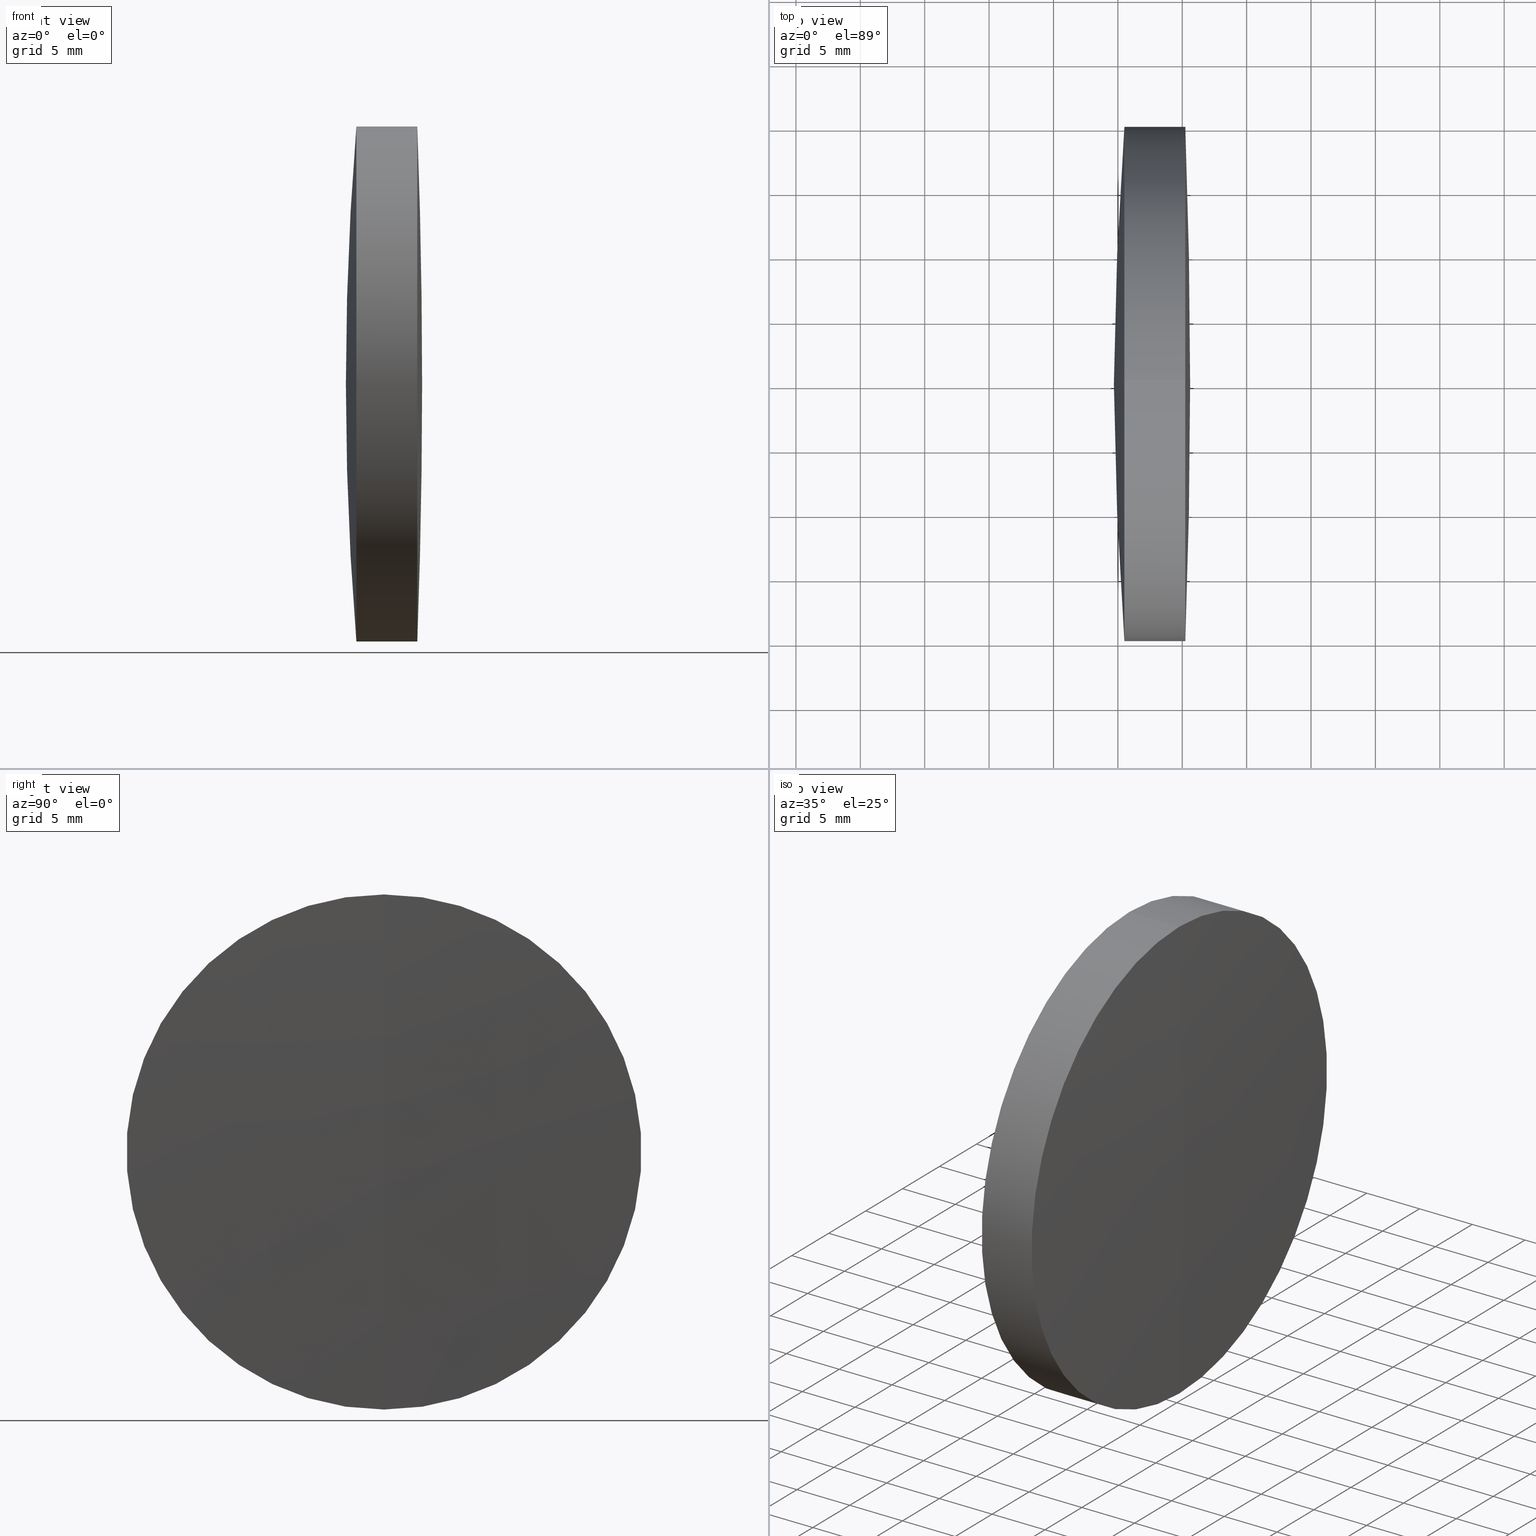
[diagram: canonical four-view strip — front | top / right | iso, engineering-drawing reading convention]
A machine part, canonical four-view strip (front | top / right | iso — engineering-drawing reading convention). The complete STEP part file that produces these views, byte-faithful:
ISO-10303-21;
HEADER;
FILE_DESCRIPTION (( 'STEP AP214' ),
    '1' );
FILE_NAME ('145076.STEP',
    '2019-05-16T01:32:46',
    ( 'user' ),
    ( '΢���й�' ),
    'SwSTEP 2.0',
    'SolidWorks 2016',
    '' );
FILE_SCHEMA (( 'AUTOMOTIVE_DESIGN' ));
ENDSEC;

DATA;
#1 = VERTEX_POINT ( 'NONE', #129 ) ;
#2 = ORIENTED_EDGE ( 'NONE', *, *, #91, .F. ) ;
#3 = AXIS2_PLACEMENT_3D ( 'NONE', #262, #344, #190 ) ;
#4 = SPHERICAL_SURFACE ( 'NONE', #308, 245.6400000000000400 ) ;
#5 = ORIENTED_EDGE ( 'NONE', *, *, #15, .F. ) ;
#6 = CARTESIAN_POINT ( 'NONE',  ( 312.3747908760627800, 0.0000000000000000000, 0.0000000000000000000 ) ) ;
#7 = CARTESIAN_POINT ( 'NONE',  ( 310.5066381123800700, 0.0000000000000000000, 0.0000000000000000000 ) ) ;
#8 = ADVANCED_FACE ( 'NONE', ( #258 ), #327, .F. ) ;
#9 = AXIS2_PLACEMENT_3D ( 'NONE', #166, #187, #220 ) ;
#10 = CARTESIAN_POINT ( 'NONE',  ( 312.3747908760627200, 0.0000000000000000000, 0.0000000000000000000 ) ) ;
#11 = LINE ( 'NONE', #111, #152 ) ;
#12 = ORIENTED_EDGE ( 'NONE', *, *, #107, .F. ) ;
#13 = DIRECTION ( 'NONE',  ( 0.0000000000000000000, 1.000000000000000000, 0.0000000000000000000 ) ) ;
#14 = ORIENTED_EDGE ( 'NONE', *, *, #162, .T. ) ;
#15 = EDGE_CURVE ( 'NONE', #69, #247, #191, .T. ) ;
#16 = CIRCLE ( 'NONE', #233, 535.8160000000000300 ) ;
#17 = AXIS2_PLACEMENT_3D ( 'NONE', #120, #276, #96 ) ;
#18 = COLOUR_RGB ( '',1.000000000000000000, 1.000000000000000000, 1.000000000000000000 ) ;
#19 = CARTESIAN_POINT ( 'NONE',  ( -0.5519199926577972300, 0.0000000000000000000, 0.0000000000000000000 ) ) ;
#20 = CARTESIAN_POINT ( 'NONE',  ( 124.5233095260452400, 0.0000000000000000000, 0.0000000000000000000 ) ) ;
#21 = FILL_AREA_STYLE_COLOUR ( '', #18 ) ;
#22 = DIRECTION ( 'NONE',  ( -1.000000000000000000, -0.0000000000000000000, -0.0000000000000000000 ) ) ;
#23 = AXIS2_PLACEMENT_3D ( 'NONE', #272, #229, #118 ) ;
#24 =( LENGTH_UNIT ( ) NAMED_UNIT ( * ) SI_UNIT ( .MILLI., .METRE. ) );
#25 = DIRECTION ( 'NONE',  ( 0.0000000000000000000, 0.0000000000000000000, 1.000000000000000000 ) ) ;
#26 =( NAMED_UNIT ( * ) SI_UNIT ( $, .STERADIAN. ) SOLID_ANGLE_UNIT ( ) );
#27 = CARTESIAN_POINT ( 'NONE',  ( 313.6110846041469200, 0.0000000000000000000, -1.245160735530812400E-013 ) ) ;
#28 = AXIS2_PLACEMENT_3D ( 'NONE', #314, #22, #217 ) ;
#29 =( NAMED_UNIT ( * ) SI_UNIT ( $, .STERADIAN. ) SOLID_ANGLE_UNIT ( ) );
#30 = EDGE_LOOP ( 'NONE', ( #103, #238, #142, #342 ) ) ;
#31 = APPLICATION_CONTEXT ( 'automotive_design' ) ;
#32 = EDGE_CURVE ( 'NONE', #336, #216, #43, .T. ) ;
#33 = ADVANCED_FACE ( 'NONE', ( #121 ), #252, .T. ) ;
#34 = CARTESIAN_POINT ( 'NONE',  ( 312.3747908760627200, 2.449293598294689900E-015, -19.99999999999986500 ) ) ;
#35 = UNCERTAINTY_MEASURE_WITH_UNIT (LENGTH_MEASURE( 1.000000000000000100E-005 ), #24, 'distance_accuracy_value', 'NONE');
#36 = AXIS2_PLACEMENT_3D ( 'NONE', #7, #174, #323 ) ;
#37 = VERTEX_POINT ( 'NONE', #182 ) ;
#38 = DIRECTION ( 'NONE',  ( -1.000000000000000000, -0.0000000000000000000, -0.0000000000000000000 ) ) ;
#39 = CIRCLE ( 'NONE', #317, 19.99999999999986500 ) ;
#40 = DIRECTION ( 'NONE',  ( 0.0000000000000000000, -1.000000000000000000, 0.0000000000000000000 ) ) ;
#41 = STYLED_ITEM ( 'NONE', ( #198 ), #299 ) ;
#42 = AXIS2_PLACEMENT_3D ( 'NONE', #312, #133, #288 ) ;
#43 = CIRCLE ( 'NONE', #3, 19.99999999999996100 ) ;
#44 = DIRECTION ( 'NONE',  ( -1.000000000000000000, -0.0000000000000000000, -0.0000000000000000000 ) ) ;
#45 = EDGE_CURVE ( 'NONE', #122, #37, #39, .T. ) ;
#46 = SURFACE_STYLE_USAGE ( .BOTH. , #239 ) ;
#47 = EDGE_LOOP ( 'NONE', ( #155, #265, #12 ) ) ;
#48 =( NAMED_UNIT ( * ) SI_UNIT ( $, .STERADIAN. ) SOLID_ANGLE_UNIT ( ) );
#49 = DIRECTION ( 'NONE',  ( -1.000000000000000000, -0.0000000000000000000, -0.0000000000000000000 ) ) ;
#50 = CARTESIAN_POINT ( 'NONE',  ( 310.5066381123800700, 0.0000000000000000000, 0.0000000000000000000 ) ) ;
#51 = CYLINDRICAL_SURFACE ( 'NONE', #23, 19.99999999999986500 ) ;
#52 = FILL_AREA_STYLE_COLOUR ( '', #222 ) ;
#53 = VERTEX_POINT ( 'NONE', #110 ) ;
#54 = AXIS2_PLACEMENT_3D ( 'NONE', #200, #302, #94 ) ;
#55 = ORIENTED_EDGE ( 'NONE', *, *, #32, .F. ) ;
#56 = APPLICATION_PROTOCOL_DEFINITION ( 'draft international standard', 'automotive_design', 1998, #87 ) ;
#57 = ORIENTED_EDGE ( 'NONE', *, *, #141, .F. ) ;
#58 = PRESENTATION_LAYER_ASSIGNMENT (  '', '', ( #41 ) ) ;
#59 = CARTESIAN_POINT ( 'NONE',  ( 315.2376920384078900, 0.0000000000000000000, 19.99999999999996100 ) ) ;
#60 = SPHERICAL_SURFACE ( 'NONE', #131, 162.3920000000000000 ) ;
#61 = ADVANCED_BREP_SHAPE_REPRESENTATION ( '145076', ( #299, #307, #241 ), #256 ) ;
#62 = ADVANCED_FACE ( 'NONE', ( #181 ), #178, .T. ) ;
#63 = AXIS2_PLACEMENT_3D ( 'NONE', #105, #184, #315 ) ;
#64 = ORIENTED_EDGE ( 'NONE', *, *, #32, .T. ) ;
#65 = DIRECTION ( 'NONE',  ( 0.0000000000000000000, -1.224646799147353200E-016, 1.000000000000000000 ) ) ;
#66 = DIRECTION ( 'NONE',  ( 0.0000000000000000000, 0.0000000000000000000, 1.000000000000000000 ) ) ;
#67 = ORIENTED_EDGE ( 'NONE', *, *, #153, .F. ) ;
#68 = EDGE_CURVE ( 'NONE', #146, #226, #309, .T. ) ;
#69 = VERTEX_POINT ( 'NONE', #83 ) ;
#70 = VECTOR ( 'NONE', #38, 1000.000000000000000 ) ;
#71 = EDGE_LOOP ( 'NONE', ( #338, #270, #55 ) ) ;
#72 = ORIENTED_EDGE ( 'NONE', *, *, #180, .F. ) ;
#73 = LINE ( 'NONE', #231, #343 ) ;
#74 = PRESENTATION_STYLE_ASSIGNMENT (( #186 ) ) ;
#75 = AXIS2_PLACEMENT_3D ( 'NONE', #6, #172, #322 ) ;
#76 = CARTESIAN_POINT ( 'NONE',  ( 151.2190846041469300, 0.0000000000000000000, -1.344597157034381000E-013 ) ) ;
#77 = SHAPE_DEFINITION_REPRESENTATION ( #99, #61 ) ;
#78 = ORIENTED_EDGE ( 'NONE', *, *, #113, .F. ) ;
#79 = ORIENTED_EDGE ( 'NONE', *, *, #124, .T. ) ;
#80 = FILL_AREA_STYLE ('',( #311 ) ) ;
#81 = FACE_OUTER_BOUND ( 'NONE', #128, .T. ) ;
#82 = ORIENTED_EDGE ( 'NONE', *, *, #125, .F. ) ;
#83 = CARTESIAN_POINT ( 'NONE',  ( 312.3747908760627800, 2.449293598294676900E-015, -19.99999999999989700 ) ) ;
#84 = MECHANICAL_DESIGN_GEOMETRIC_PRESENTATION_REPRESENTATION (  '', ( #41 ), #104 ) ;
#85 = CARTESIAN_POINT ( 'NONE',  ( 310.5066381123801300, 2.449293598294697000E-015, -20.00000000000005700 ) ) ;
#86 = SPHERICAL_SURFACE ( 'NONE', #244, 162.3920000000000000 ) ;
#87 = APPLICATION_CONTEXT ( 'automotive_design' ) ;
#88 = ORIENTED_EDGE ( 'NONE', *, *, #162, .F. ) ;
#89 = ORIENTED_EDGE ( 'NONE', *, *, #45, .F. ) ;
#90 = PRESENTATION_STYLE_ASSIGNMENT (( #136 ) ) ;
#91 = EDGE_CURVE ( 'NONE', #37, #1, #248, .T. ) ;
#92 = LINE ( 'NONE', #279, #70 ) ;
#93 = CARTESIAN_POINT ( 'NONE',  ( 312.3747908760627800, 0.0000000000000000000, 19.99999999999976200 ) ) ;
#94 = DIRECTION ( 'NONE',  ( 0.0000000000000000000, 0.0000000000000000000, 1.000000000000000000 ) ) ;
#95 = ADVANCED_FACE ( 'NONE', ( #319 ), #227, .T. ) ;
#96 = DIRECTION ( 'NONE',  ( 0.0000000000000000000, 0.0000000000000000000, -1.000000000000000000 ) ) ;
#97 = AXIS2_PLACEMENT_3D ( 'NONE', #148, #301, #274 ) ;
#98 = CARTESIAN_POINT ( 'NONE',  ( 151.2190846041469300, 0.0000000000000000000, -1.344597157034381000E-013 ) ) ;
#99 = PRODUCT_DEFINITION_SHAPE ( 'NONE', 'NONE',  #255 ) ;
#100 = ORIENTED_EDGE ( 'NONE', *, *, #195, .F. ) ;
#101 = FACE_OUTER_BOUND ( 'NONE', #204, .T. ) ;
#102 = DIRECTION ( 'NONE',  ( 0.0000000000000000000, -1.224646799147353500E-016, 1.000000000000000000 ) ) ;
#103 = ORIENTED_EDGE ( 'NONE', *, *, #107, .T. ) ;
#104 =( GEOMETRIC_REPRESENTATION_CONTEXT ( 3 ) GLOBAL_UNCERTAINTY_ASSIGNED_CONTEXT ( ( #250 ) ) GLOBAL_UNIT_ASSIGNED_CONTEXT ( ( #183, #240, #48 ) ) REPRESENTATION_CONTEXT ( 'NONE', 'WORKASPACE' ) );
#105 = CARTESIAN_POINT ( 'NONE',  ( -220.2049153958530800, 0.0000000000000000000, 0.0000000000000000000 ) ) ;
#106 = EDGE_CURVE ( 'NONE', #130, #336, #16, .T. ) ;
#107 = EDGE_CURVE ( 'NONE', #216, #336, #156, .T. ) ;
#108 = DIRECTION ( 'NONE',  ( 0.0000000000000000000, -1.000000000000000000, 0.0000000000000000000 ) ) ;
#109 = FILL_AREA_STYLE ('',( #21 ) ) ;
#110 = CARTESIAN_POINT ( 'NONE',  ( 313.6110846041469800, 0.0000000000000000000, -1.245160735530812400E-013 ) ) ;
#111 = CARTESIAN_POINT ( 'NONE',  ( -0.5519199926577972300, 0.0000000000000000000, 19.99999999999992900 ) ) ;
#112 = STYLED_ITEM ( 'NONE', ( #74 ), #61 ) ;
#113 = EDGE_CURVE ( 'NONE', #53, #247, #290, .T. ) ;
#114 = SPHERICAL_SURFACE ( 'NONE', #54, 535.8160000000000300 ) ;
#115 =( NAMED_UNIT ( * ) PLANE_ANGLE_UNIT ( ) SI_UNIT ( $, .RADIAN. ) );
#116 = ORIENTED_EDGE ( 'NONE', *, *, #153, .T. ) ;
#117 = STYLED_ITEM ( 'NONE', ( #90 ), #307 ) ;
#118 = DIRECTION ( 'NONE',  ( 0.0000000000000000000, 0.0000000000000000000, 1.000000000000000000 ) ) ;
#119 = ADVANCED_FACE ( 'NONE', ( #81 ), #4, .T. ) ;
#120 = CARTESIAN_POINT ( 'NONE',  ( 151.2190846041469300, 0.0000000000000000000, -1.344597157034381000E-013 ) ) ;
#121 = FACE_OUTER_BOUND ( 'NONE', #71, .T. ) ;
#122 = VERTEX_POINT ( 'NONE', #85 ) ;
#123 = CARTESIAN_POINT ( 'NONE',  ( 315.6110846041469800, 0.0000000000000000000, 3.280926746659691900E-014 ) ) ;
#124 = EDGE_CURVE ( 'NONE', #332, #226, #144, .T. ) ;
#125 = EDGE_CURVE ( 'NONE', #336, #69, #92, .T. ) ;
#126 = UNCERTAINTY_MEASURE_WITH_UNIT (LENGTH_MEASURE( 1.000000000000000100E-005 ), #266, 'distance_accuracy_value', 'NONE');
#127 = CIRCLE ( 'NONE', #335, 535.8160000000000300 ) ;
#128 = EDGE_LOOP ( 'NONE', ( #269, #145, #212 ) ) ;
#129 = CARTESIAN_POINT ( 'NONE',  ( 309.6910846041468500, 0.0000000000000000000, -1.194186039121518800E-013 ) ) ;
#130 = VERTEX_POINT ( 'NONE', #123 ) ;
#131 = AXIS2_PLACEMENT_3D ( 'NONE', #249, #196, #300 ) ;
#132 = ORIENTED_EDGE ( 'NONE', *, *, #218, .T. ) ;
#133 = DIRECTION ( 'NONE',  ( 0.0000000000000000000, -1.000000000000000000, 0.0000000000000000000 ) ) ;
#134 = DIRECTION ( 'NONE',  ( -1.000000000000000000, -0.0000000000000000000, -0.0000000000000000000 ) ) ;
#135 = FACE_OUTER_BOUND ( 'NONE', #259, .T. ) ;
#136 = SURFACE_STYLE_USAGE ( .BOTH. , #292 ) ;
#137 = AXIS2_PLACEMENT_3D ( 'NONE', #294, #139, #316 ) ;
#138 = COLOUR_RGB ( '',1.000000000000000000, 1.000000000000000000, 1.000000000000000000 ) ;
#139 = DIRECTION ( 'NONE',  ( -0.0000000000000000000, 1.000000000000000000, 1.224646799147353200E-016 ) ) ;
#140 = CARTESIAN_POINT ( 'NONE',  ( 151.2190846041469300, 0.0000000000000000000, -1.344597157034381000E-013 ) ) ;
#141 = EDGE_CURVE ( 'NONE', #226, #122, #214, .T. ) ;
#142 = ORIENTED_EDGE ( 'NONE', *, *, #218, .F. ) ;
#143 = EDGE_LOOP ( 'NONE', ( #57, #116, #158, #89 ) ) ;
#144 = CIRCLE ( 'NONE', #295, 162.3920000000000000 ) ;
#145 = ORIENTED_EDGE ( 'NONE', *, *, #45, .T. ) ;
#146 = VERTEX_POINT ( 'NONE', #304 ) ;
#147 = FACE_OUTER_BOUND ( 'NONE', #177, .T. ) ;
#148 = CARTESIAN_POINT ( 'NONE',  ( 151.2190846041469300, 0.0000000000000000000, -1.344597157034381000E-013 ) ) ;
#149 = ADVANCED_FACE ( 'NONE', ( #135 ), #340, .T. ) ;
#150 = SURFACE_STYLE_FILL_AREA ( #267 ) ;
#151 = CARTESIAN_POINT ( 'NONE',  ( 555.3310846041468900, 0.0000000000000000000, -1.344597158992796700E-013 ) ) ;
#152 = VECTOR ( 'NONE', #345, 1000.000000000000000 ) ;
#153 = EDGE_CURVE ( 'NONE', #226, #146, #271, .T. ) ;
#154 = ORIENTED_EDGE ( 'NONE', *, *, #141, .T. ) ;
#155 = ORIENTED_EDGE ( 'NONE', *, *, #268, .F. ) ;
#156 = CIRCLE ( 'NONE', #257, 19.99999999999996100 ) ;
#157 = PRESENTATION_LAYER_ASSIGNMENT (  '', '', ( #112 ) ) ;
#158 = ORIENTED_EDGE ( 'NONE', *, *, #195, .T. ) ;
#159 = AXIS2_PLACEMENT_3D ( 'NONE', #20, #134, #213 ) ;
#160 = CIRCLE ( 'NONE', #137, 245.6400000000000400 ) ;
#161 = ORIENTED_EDGE ( 'NONE', *, *, #68, .T. ) ;
#162 = EDGE_CURVE ( 'NONE', #332, #146, #283, .T. ) ;
#163 = CARTESIAN_POINT ( 'NONE',  ( 312.3747908760627800, 0.0000000000000000000, 0.0000000000000000000 ) ) ;
#164 = CYLINDRICAL_SURFACE ( 'NONE', #159, 19.99999999999986500 ) ;
#165 =( LENGTH_UNIT ( ) NAMED_UNIT ( * ) SI_UNIT ( .MILLI., .METRE. ) );
#166 = CARTESIAN_POINT ( 'NONE',  ( -0.5519199926577972300, 0.0000000000000000000, 0.0000000000000000000 ) ) ;
#167 = DIRECTION ( 'NONE',  ( 0.0000000000000000000, 0.0000000000000000000, 1.000000000000000000 ) ) ;
#168 = DIRECTION ( 'NONE',  ( 0.0000000000000000000, -1.224646799147353200E-016, 1.000000000000000000 ) ) ;
#169 = DIRECTION ( 'NONE',  ( 0.0000000000000000000, 0.0000000000000000000, 1.000000000000000000 ) ) ;
#170 = FACE_OUTER_BOUND ( 'NONE', #143, .T. ) ;
#171 = MECHANICAL_DESIGN_GEOMETRIC_PRESENTATION_REPRESENTATION (  '', ( #112 ), #185 ) ;
#172 = DIRECTION ( 'NONE',  ( -1.000000000000000000, -0.0000000000000000000, -0.0000000000000000000 ) ) ;
#173 = PRESENTATION_LAYER_ASSIGNMENT (  '', '', ( #117 ) ) ;
#174 = DIRECTION ( 'NONE',  ( -1.000000000000000000, -0.0000000000000000000, -0.0000000000000000000 ) ) ;
#175 = DIRECTION ( 'NONE',  ( -1.000000000000000000, -0.0000000000000000000, -0.0000000000000000000 ) ) ;
#176 = ADVANCED_FACE ( 'NONE', ( #333 ), #114, .T. ) ;
#177 = EDGE_LOOP ( 'NONE', ( #330, #14, #67 ) ) ;
#178 = CYLINDRICAL_SURFACE ( 'NONE', #9, 19.99999999999992900 ) ;
#179 = DIRECTION ( 'NONE',  ( 0.0000000000000000000, 0.0000000000000000000, 1.000000000000000000 ) ) ;
#180 = EDGE_CURVE ( 'NONE', #37, #122, #221, .T. ) ;
#181 = FACE_OUTER_BOUND ( 'NONE', #30, .T. ) ;
#182 = CARTESIAN_POINT ( 'NONE',  ( 310.5066381123801300, 0.0000000000000000000, 19.99999999999992200 ) ) ;
#183 =( LENGTH_UNIT ( ) NAMED_UNIT ( * ) SI_UNIT ( .MILLI., .METRE. ) );
#184 = DIRECTION ( 'NONE',  ( 0.0000000000000000000, 1.000000000000000000, 0.0000000000000000000 ) ) ;
#185 =( GEOMETRIC_REPRESENTATION_CONTEXT ( 3 ) GLOBAL_UNCERTAINTY_ASSIGNED_CONTEXT ( ( #35 ) ) GLOBAL_UNIT_ASSIGNED_CONTEXT ( ( #24, #115, #296 ) ) REPRESENTATION_CONTEXT ( 'NONE', 'WORKASPACE' ) );
#186 = SURFACE_STYLE_USAGE ( .BOTH. , #341 ) ;
#187 = DIRECTION ( 'NONE',  ( -1.000000000000000000, -0.0000000000000000000, -0.0000000000000000000 ) ) ;
#188 = MECHANICAL_DESIGN_GEOMETRIC_PRESENTATION_REPRESENTATION (  '', ( #117 ), #208 ) ;
#189 = UNCERTAINTY_MEASURE_WITH_UNIT (LENGTH_MEASURE( 1.000000000000000100E-005 ), #165, 'distance_accuracy_value', 'NONE');
#190 = DIRECTION ( 'NONE',  ( 0.0000000000000000000, 0.0000000000000000000, 1.000000000000000000 ) ) ;
#191 = CIRCLE ( 'NONE', #298, 19.99999999999989300 ) ;
#192 =( NAMED_UNIT ( * ) PLANE_ANGLE_UNIT ( ) SI_UNIT ( $, .RADIAN. ) );
#193 = ORIENTED_EDGE ( 'NONE', *, *, #337, .T. ) ;
#194 = PRODUCT_CONTEXT ( 'NONE', #87, 'mechanical' ) ;
#195 = EDGE_CURVE ( 'NONE', #146, #37, #73, .T. ) ;
#196 = DIRECTION ( 'NONE',  ( 0.0000000000000000000, 1.000000000000000000, 0.0000000000000000000 ) ) ;
#197 = DIRECTION ( 'NONE',  ( -1.000000000000000000, -0.0000000000000000000, -0.0000000000000000000 ) ) ;
#198 = PRESENTATION_STYLE_ASSIGNMENT (( #46 ) ) ;
#199 = ADVANCED_FACE ( 'NONE', ( #207 ), #275, .F. ) ;
#200 = CARTESIAN_POINT ( 'NONE',  ( -220.2049153958530800, 0.0000000000000000000, 0.0000000000000000000 ) ) ;
#201 = EDGE_LOOP ( 'NONE', ( #82, #64, #281, #5 ) ) ;
#202 = PRODUCT ( '145076', '145076', '', ( #194 ) ) ;
#203 = DIRECTION ( 'NONE',  ( 0.0000000000000000000, 0.0000000000000000000, -1.000000000000000000 ) ) ;
#204 = EDGE_LOOP ( 'NONE', ( #88, #79, #219 ) ) ;
#205 = DIRECTION ( 'NONE',  ( -1.000000000000000000, -0.0000000000000000000, -0.0000000000000000000 ) ) ;
#206 = VECTOR ( 'NONE', #328, 1000.000000000000000 ) ;
#207 = FACE_OUTER_BOUND ( 'NONE', #287, .T. ) ;
#208 =( GEOMETRIC_REPRESENTATION_CONTEXT ( 3 ) GLOBAL_UNCERTAINTY_ASSIGNED_CONTEXT ( ( #189 ) ) GLOBAL_UNIT_ASSIGNED_CONTEXT ( ( #165, #313, #26 ) ) REPRESENTATION_CONTEXT ( 'NONE', 'WORKASPACE' ) );
#209 = DIRECTION ( 'NONE',  ( 0.0000000000000000000, 1.000000000000000000, 0.0000000000000000000 ) ) ;
#210 = DIRECTION ( 'NONE',  ( 0.0000000000000000000, 0.0000000000000000000, 1.000000000000000000 ) ) ;
#211 = ORIENTED_EDGE ( 'NONE', *, *, #180, .T. ) ;
#212 = ORIENTED_EDGE ( 'NONE', *, *, #91, .T. ) ;
#213 = DIRECTION ( 'NONE',  ( 0.0000000000000000000, 0.0000000000000000000, 1.000000000000000000 ) ) ;
#214 = LINE ( 'NONE', #306, #206 ) ;
#215 = CARTESIAN_POINT ( 'NONE',  ( 151.2190846041469300, 0.0000000000000000000, -1.344597157034381000E-013 ) ) ;
#216 = VERTEX_POINT ( 'NONE', #59 ) ;
#217 = DIRECTION ( 'NONE',  ( 0.0000000000000000000, 0.0000000000000000000, 1.000000000000000000 ) ) ;
#218 = EDGE_CURVE ( 'NONE', #247, #69, #285, .T. ) ;
#219 = ORIENTED_EDGE ( 'NONE', *, *, #68, .F. ) ;
#220 = DIRECTION ( 'NONE',  ( 0.0000000000000000000, 0.0000000000000000000, 1.000000000000000000 ) ) ;
#221 = CIRCLE ( 'NONE', #36, 19.99999999999986500 ) ;
#222 = COLOUR_RGB ( '',1.000000000000000000, 1.000000000000000000, 1.000000000000000000 ) ;
#223 = CARTESIAN_POINT ( 'NONE',  ( 315.2376920384078900, 2.449293598294701800E-015, -19.99999999999996100 ) ) ;
#224 = CIRCLE ( 'NONE', #230, 162.3920000000000200 ) ;
#225 = APPLICATION_PROTOCOL_DEFINITION ( 'draft international standard', 'automotive_design', 1998, #31 ) ;
#226 = VERTEX_POINT ( 'NONE', #34 ) ;
#227 = CYLINDRICAL_SURFACE ( 'NONE', #246, 19.99999999999992900 ) ;
#228 = EDGE_LOOP ( 'NONE', ( #235, #284, #132 ) ) ;
#229 = DIRECTION ( 'NONE',  ( -1.000000000000000000, -0.0000000000000000000, -0.0000000000000000000 ) ) ;
#230 = AXIS2_PLACEMENT_3D ( 'NONE', #140, #318, #168 ) ;
#231 = CARTESIAN_POINT ( 'NONE',  ( 124.5233095260452400, 0.0000000000000000000, 19.99999999999986500 ) ) ;
#232 = ADVANCED_FACE ( 'NONE', ( #147 ), #60, .T. ) ;
#233 = AXIS2_PLACEMENT_3D ( 'NONE', #261, #282, #102 ) ;
#234 = DIRECTION ( 'NONE',  ( 0.0000000000000000000, 1.000000000000000000, 0.0000000000000000000 ) ) ;
#235 = ORIENTED_EDGE ( 'NONE', *, *, #337, .F. ) ;
#236 = CARTESIAN_POINT ( 'NONE',  ( 151.2190846041469300, 0.0000000000000000000, -1.344597157034381000E-013 ) ) ;
#237 = CARTESIAN_POINT ( 'NONE',  ( 315.2376920384078900, 0.0000000000000000000, 0.0000000000000000000 ) ) ;
#238 = ORIENTED_EDGE ( 'NONE', *, *, #125, .T. ) ;
#239 = SURFACE_SIDE_STYLE ('',( #264 ) ) ;
#240 =( NAMED_UNIT ( * ) PLANE_ANGLE_UNIT ( ) SI_UNIT ( $, .RADIAN. ) );
#241 = AXIS2_PLACEMENT_3D ( 'NONE', #320, #169, #347 ) ;
#242 = DIRECTION ( 'NONE',  ( 0.0000000000000000000, 0.0000000000000000000, 1.000000000000000000 ) ) ;
#243 = DIRECTION ( 'NONE',  ( -1.000000000000000000, -0.0000000000000000000, -0.0000000000000000000 ) ) ;
#244 = AXIS2_PLACEMENT_3D ( 'NONE', #215, #245, #167 ) ;
#245 = DIRECTION ( 'NONE',  ( 0.0000000000000000000, 1.000000000000000000, 0.0000000000000000000 ) ) ;
#246 = AXIS2_PLACEMENT_3D ( 'NONE', #19, #49, #242 ) ;
#247 = VERTEX_POINT ( 'NONE', #93 ) ;
#248 = CIRCLE ( 'NONE', #42, 245.6400000000000400 ) ;
#249 = CARTESIAN_POINT ( 'NONE',  ( 151.2190846041469300, 0.0000000000000000000, -1.344597157034381000E-013 ) ) ;
#250 = UNCERTAINTY_MEASURE_WITH_UNIT (LENGTH_MEASURE( 1.000000000000000100E-005 ), #183, 'distance_accuracy_value', 'NONE');
#251 = ADVANCED_FACE ( 'NONE', ( #334 ), #51, .T. ) ;
#252 = SPHERICAL_SURFACE ( 'NONE', #63, 535.8160000000000300 ) ;
#253 = DIRECTION ( 'NONE',  ( -0.0000000000000000000, 1.000000000000000000, 1.224646799147353200E-016 ) ) ;
#254 = CARTESIAN_POINT ( 'NONE',  ( 555.3310846041468900, 0.0000000000000000000, -1.344597158992796700E-013 ) ) ;
#255 = PRODUCT_DEFINITION ( 'δ֪', '', #273, #286 ) ;
#256 =( GEOMETRIC_REPRESENTATION_CONTEXT ( 3 ) GLOBAL_UNCERTAINTY_ASSIGNED_CONTEXT ( ( #126 ) ) GLOBAL_UNIT_ASSIGNED_CONTEXT ( ( #266, #192, #29 ) ) REPRESENTATION_CONTEXT ( 'NONE', 'WORKASPACE' ) );
#257 = AXIS2_PLACEMENT_3D ( 'NONE', #237, #205, #66 ) ;
#258 = FACE_OUTER_BOUND ( 'NONE', #228, .T. ) ;
#259 = EDGE_LOOP ( 'NONE', ( #211, #329, #2 ) ) ;
#260 = DIRECTION ( 'NONE',  ( 0.0000000000000000000, 0.0000000000000000000, 1.000000000000000000 ) ) ;
#261 = CARTESIAN_POINT ( 'NONE',  ( -220.2049153958530800, 0.0000000000000000000, 0.0000000000000000000 ) ) ;
#262 = CARTESIAN_POINT ( 'NONE',  ( 315.2376920384078900, 0.0000000000000000000, 0.0000000000000000000 ) ) ;
#263 = DIRECTION ( 'NONE',  ( 0.0000000000000000000, 0.0000000000000000000, -1.000000000000000000 ) ) ;
#264 = SURFACE_STYLE_FILL_AREA ( #80 ) ;
#265 = ORIENTED_EDGE ( 'NONE', *, *, #106, .T. ) ;
#266 =( LENGTH_UNIT ( ) NAMED_UNIT ( * ) SI_UNIT ( .MILLI., .METRE. ) );
#267 = FILL_AREA_STYLE ('',( #52 ) ) ;
#268 = EDGE_CURVE ( 'NONE', #130, #216, #127, .T. ) ;
#269 = ORIENTED_EDGE ( 'NONE', *, *, #321, .F. ) ;
#270 = ORIENTED_EDGE ( 'NONE', *, *, #268, .T. ) ;
#271 = CIRCLE ( 'NONE', #326, 19.99999999999986500 ) ;
#272 = CARTESIAN_POINT ( 'NONE',  ( 124.5233095260452400, 0.0000000000000000000, 0.0000000000000000000 ) ) ;
#273 = PRODUCT_DEFINITION_FORMATION_WITH_SPECIFIED_SOURCE ( '�κ�', '', #202, .NOT_KNOWN. ) ;
#274 = DIRECTION ( 'NONE',  ( 0.0000000000000000000, 0.0000000000000000000, 1.000000000000000000 ) ) ;
#275 = SPHERICAL_SURFACE ( 'NONE', #97, 162.3920000000000200 ) ;
#276 = DIRECTION ( 'NONE',  ( 0.0000000000000000000, -1.000000000000000000, 0.0000000000000000000 ) ) ;
#277 = AXIS2_PLACEMENT_3D ( 'NONE', #236, #40, #203 ) ;
#278 = DIRECTION ( 'NONE',  ( 0.0000000000000000000, 0.0000000000000000000, 1.000000000000000000 ) ) ;
#279 = CARTESIAN_POINT ( 'NONE',  ( -0.5519199926577972300, 2.449293598294697400E-015, -19.99999999999992900 ) ) ;
#280 = CLOSED_SHELL ( 'NONE', ( #176, #62, #199, #8, #95, #33 ) ) ;
#281 = ORIENTED_EDGE ( 'NONE', *, *, #331, .T. ) ;
#282 = DIRECTION ( 'NONE',  ( -0.0000000000000000000, 1.000000000000000000, 1.224646799147353200E-016 ) ) ;
#283 = CIRCLE ( 'NONE', #17, 162.3920000000000000 ) ;
#284 = ORIENTED_EDGE ( 'NONE', *, *, #113, .T. ) ;
#285 = CIRCLE ( 'NONE', #75, 19.99999999999989300 ) ;
#286 = PRODUCT_DEFINITION_CONTEXT ( 'detailed design', #31, 'design' ) ;
#287 = EDGE_LOOP ( 'NONE', ( #78, #193, #305 ) ) ;
#288 = DIRECTION ( 'NONE',  ( 0.0000000000000000000, 0.0000000000000000000, -1.000000000000000000 ) ) ;
#289 = CLOSED_SHELL ( 'NONE', ( #324, #251, #149, #119, #303, #232 ) ) ;
#290 = CIRCLE ( 'NONE', #277, 162.3920000000000200 ) ;
#291 = CARTESIAN_POINT ( 'NONE',  ( -220.2049153958530800, 0.0000000000000000000, 0.0000000000000000000 ) ) ;
#292 = SURFACE_SIDE_STYLE ('',( #297 ) ) ;
#293 = PRODUCT_RELATED_PRODUCT_CATEGORY ( 'part', '', ( #202 ) ) ;
#294 = CARTESIAN_POINT ( 'NONE',  ( 555.3310846041468900, 0.0000000000000000000, -1.344597158992796700E-013 ) ) ;
#295 = AXIS2_PLACEMENT_3D ( 'NONE', #98, #253, #65 ) ;
#296 =( NAMED_UNIT ( * ) SI_UNIT ( $, .STERADIAN. ) SOLID_ANGLE_UNIT ( ) );
#297 = SURFACE_STYLE_FILL_AREA ( #109 ) ;
#298 = AXIS2_PLACEMENT_3D ( 'NONE', #163, #44, #210 ) ;
#299 = MANIFOLD_SOLID_BREP ( '��ת1', #289 ) ;
#300 = DIRECTION ( 'NONE',  ( 0.0000000000000000000, 0.0000000000000000000, 1.000000000000000000 ) ) ;
#301 = DIRECTION ( 'NONE',  ( 0.0000000000000000000, 1.000000000000000000, 0.0000000000000000000 ) ) ;
#302 = DIRECTION ( 'NONE',  ( 0.0000000000000000000, 1.000000000000000000, 0.0000000000000000000 ) ) ;
#303 = ADVANCED_FACE ( 'NONE', ( #170 ), #164, .T. ) ;
#304 = CARTESIAN_POINT ( 'NONE',  ( 312.3747908760627200, 0.0000000000000000000, 19.99999999999986500 ) ) ;
#305 = ORIENTED_EDGE ( 'NONE', *, *, #15, .T. ) ;
#306 = CARTESIAN_POINT ( 'NONE',  ( 124.5233095260452400, 2.449293598294689900E-015, -19.99999999999986500 ) ) ;
#307 = MANIFOLD_SOLID_BREP ( '��ת3', #280 ) ;
#308 = AXIS2_PLACEMENT_3D ( 'NONE', #254, #13, #179 ) ;
#309 = CIRCLE ( 'NONE', #28, 19.99999999999986500 ) ;
#310 = AXIS2_PLACEMENT_3D ( 'NONE', #76, #209, #260 ) ;
#311 = FILL_AREA_STYLE_COLOUR ( '', #138 ) ;
#312 = CARTESIAN_POINT ( 'NONE',  ( 555.3310846041468900, 0.0000000000000000000, -1.344597158992796700E-013 ) ) ;
#313 =( NAMED_UNIT ( * ) PLANE_ANGLE_UNIT ( ) SI_UNIT ( $, .RADIAN. ) );
#314 = CARTESIAN_POINT ( 'NONE',  ( 312.3747908760627200, 0.0000000000000000000, 0.0000000000000000000 ) ) ;
#315 = DIRECTION ( 'NONE',  ( 0.0000000000000000000, 0.0000000000000000000, 1.000000000000000000 ) ) ;
#316 = DIRECTION ( 'NONE',  ( 0.0000000000000000000, -1.224646799147353500E-016, 1.000000000000000000 ) ) ;
#317 = AXIS2_PLACEMENT_3D ( 'NONE', #50, #243, #25 ) ;
#318 = DIRECTION ( 'NONE',  ( -0.0000000000000000000, 1.000000000000000000, 1.224646799147353200E-016 ) ) ;
#319 = FACE_OUTER_BOUND ( 'NONE', #201, .T. ) ;
#320 = CARTESIAN_POINT ( 'NONE',  ( 0.0000000000000000000, 0.0000000000000000000, 0.0000000000000000000 ) ) ;
#321 = EDGE_CURVE ( 'NONE', #122, #1, #160, .T. ) ;
#322 = DIRECTION ( 'NONE',  ( 0.0000000000000000000, 0.0000000000000000000, 1.000000000000000000 ) ) ;
#323 = DIRECTION ( 'NONE',  ( 0.0000000000000000000, 0.0000000000000000000, 1.000000000000000000 ) ) ;
#324 = ADVANCED_FACE ( 'NONE', ( #101 ), #86, .T. ) ;
#325 = DIRECTION ( 'NONE',  ( 0.0000000000000000000, 0.0000000000000000000, 1.000000000000000000 ) ) ;
#326 = AXIS2_PLACEMENT_3D ( 'NONE', #10, #175, #325 ) ;
#327 = SPHERICAL_SURFACE ( 'NONE', #310, 162.3920000000000200 ) ;
#328 = DIRECTION ( 'NONE',  ( -1.000000000000000000, -0.0000000000000000000, -0.0000000000000000000 ) ) ;
#329 = ORIENTED_EDGE ( 'NONE', *, *, #321, .T. ) ;
#330 = ORIENTED_EDGE ( 'NONE', *, *, #124, .F. ) ;
#331 = EDGE_CURVE ( 'NONE', #216, #247, #11, .T. ) ;
#332 = VERTEX_POINT ( 'NONE', #27 ) ;
#333 = FACE_OUTER_BOUND ( 'NONE', #47, .T. ) ;
#334 = FACE_OUTER_BOUND ( 'NONE', #339, .T. ) ;
#335 = AXIS2_PLACEMENT_3D ( 'NONE', #291, #108, #263 ) ;
#336 = VERTEX_POINT ( 'NONE', #223 ) ;
#337 = EDGE_CURVE ( 'NONE', #53, #69, #224, .T. ) ;
#338 = ORIENTED_EDGE ( 'NONE', *, *, #106, .F. ) ;
#339 = EDGE_LOOP ( 'NONE', ( #161, #154, #72, #100 ) ) ;
#340 = SPHERICAL_SURFACE ( 'NONE', #346, 245.6400000000000400 ) ;
#341 = SURFACE_SIDE_STYLE ('',( #150 ) ) ;
#342 = ORIENTED_EDGE ( 'NONE', *, *, #331, .F. ) ;
#343 = VECTOR ( 'NONE', #197, 1000.000000000000000 ) ;
#344 = DIRECTION ( 'NONE',  ( -1.000000000000000000, -0.0000000000000000000, -0.0000000000000000000 ) ) ;
#345 = DIRECTION ( 'NONE',  ( -1.000000000000000000, -0.0000000000000000000, -0.0000000000000000000 ) ) ;
#346 = AXIS2_PLACEMENT_3D ( 'NONE', #151, #234, #278 ) ;
#347 = DIRECTION ( 'NONE',  ( 1.000000000000000000, 0.0000000000000000000, 0.0000000000000000000 ) ) ;
ENDSEC;
END-ISO-10303-21;
